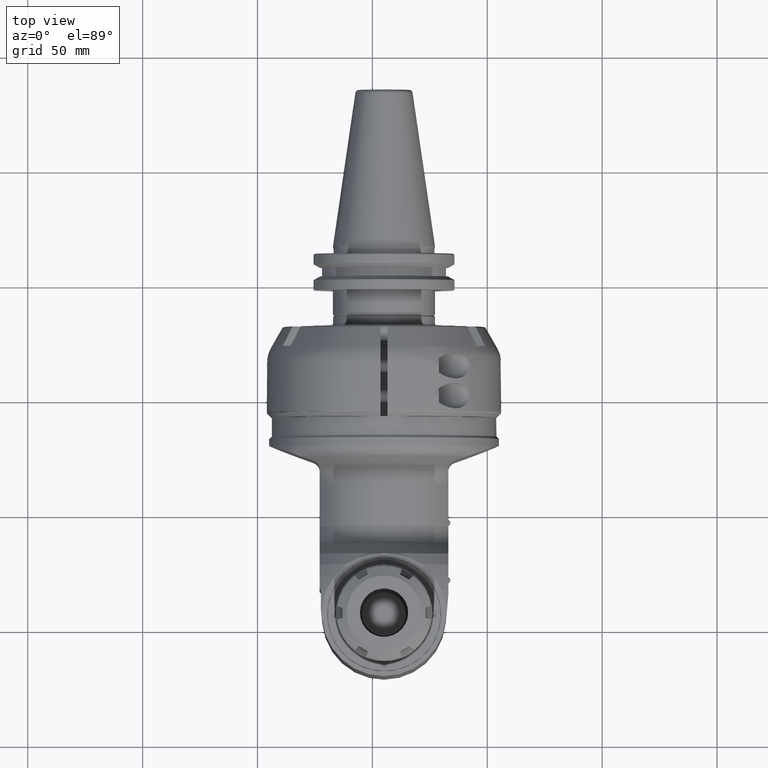
[diagram: clean part render]
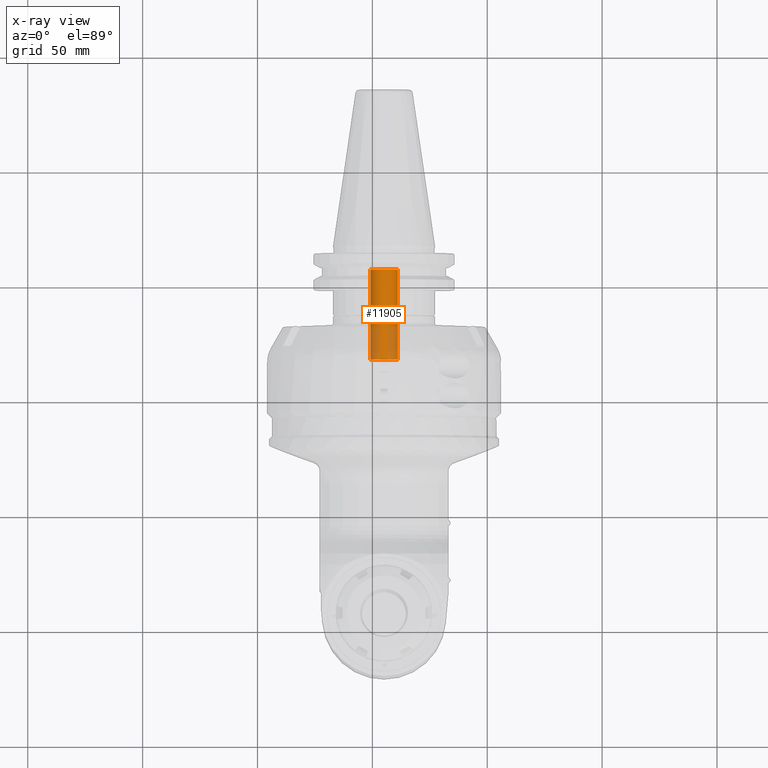
[diagram: x-ray — body ghosted, one internal face saturated and labeled with its STEP entity id]
A machine part, top view, then the same camera in x-ray: the body is ghosted and one INTERNAL B-rep face — a face not visible from any outside direction — is saturated and labeled: STEP entity #11905.
In plain terms, the highlighted cylindrical surface (bore or boss wall) has radius 6 mm, axis along (0, 1, 0).
Its self-contained STEP definition (entity closure, byte-faithful):
#893=CYLINDRICAL_SURFACE('',#13359,0.236220472440945);
#1526=CIRCLE('',#13355,0.236220472440945);
#1528=CIRCLE('',#13357,0.236220472440945);
#1529=CIRCLE('',#13360,0.236220472440945);
#2229=FACE_OUTER_BOUND('',#3038,.T.);
#3038=EDGE_LOOP('',(#10837,#10838,#10839,#10840,#10841));
#3775=LINE('',#24166,#4513);
#4513=VECTOR('',#16874,0.236220472440945);
#5646=VERTEX_POINT('',#24155);
#5647=VERTEX_POINT('',#24156);
#5649=VERTEX_POINT('',#24164);
#7378=EDGE_CURVE('',#5646,#5647,#1526,.T.);
#7381=EDGE_CURVE('',#5647,#5646,#1528,.T.);
#7382=EDGE_CURVE('',#5649,#5649,#1529,.T.);
#7383=EDGE_CURVE('',#5649,#5646,#3775,.T.);
#10837=ORIENTED_EDGE('',*,*,#7382,.T.);
#10838=ORIENTED_EDGE('',*,*,#7383,.T.);
#10839=ORIENTED_EDGE('',*,*,#7381,.F.);
#10840=ORIENTED_EDGE('',*,*,#7378,.F.);
#10841=ORIENTED_EDGE('',*,*,#7383,.F.);
#11905=ADVANCED_FACE('',(#2229),#893,.T.);
#13355=AXIS2_PLACEMENT_3D('',#24157,#16861,#16862);
#13357=AXIS2_PLACEMENT_3D('',#24161,#16866,#16867);
#13359=AXIS2_PLACEMENT_3D('',#24163,#16870,#16871);
#13360=AXIS2_PLACEMENT_3D('',#24165,#16872,#16873);
#16861=DIRECTION('center_axis',(0.,-1.,0.));
#16862=DIRECTION('ref_axis',(1.,0.,0.));
#16866=DIRECTION('center_axis',(0.,-1.,0.));
#16867=DIRECTION('ref_axis',(1.,0.,0.));
#16870=DIRECTION('center_axis',(0.,1.,0.));
#16871=DIRECTION('ref_axis',(1.,0.,0.));
#16872=DIRECTION('center_axis',(0.,-1.,0.));
#16873=DIRECTION('ref_axis',(-1.,0.,0.));
#16874=DIRECTION('',(0.,-1.,0.));
#24155=CARTESIAN_POINT('',(-0.236220472440945,0.999015748031496,0.));
#24156=CARTESIAN_POINT('',(2.89286645467951E-17,0.999015748031437,0.236220472441004));
#24157=CARTESIAN_POINT('Origin',(0.,0.999015748031496,0.));
#24161=CARTESIAN_POINT('Origin',(0.,0.999015748031496,0.));
#24163=CARTESIAN_POINT('Origin',(0.,0.862204724409449,0.));
#24164=CARTESIAN_POINT('',(-0.236220472440945,2.53937007874016,2.89286645467879E-17));
#24165=CARTESIAN_POINT('Origin',(0.,2.53937007874016,0.));
#24166=CARTESIAN_POINT('',(-0.236220472440945,0.862204724409449,2.89286645467879E-17));